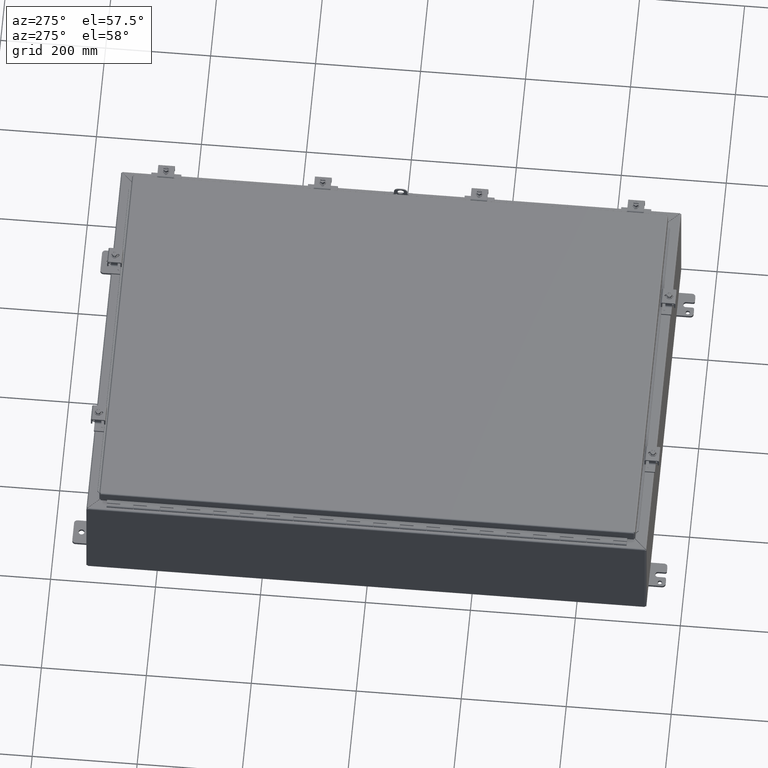
[diagram: clean part render]
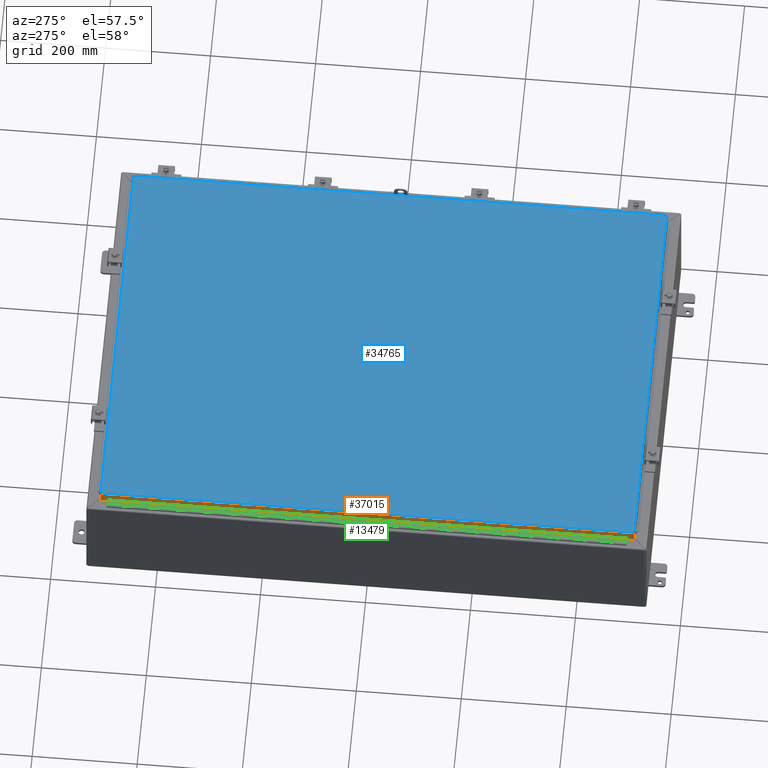
[diagram: same view with three faces highlighted in distinct colors, each labeled with its STEP entity id]
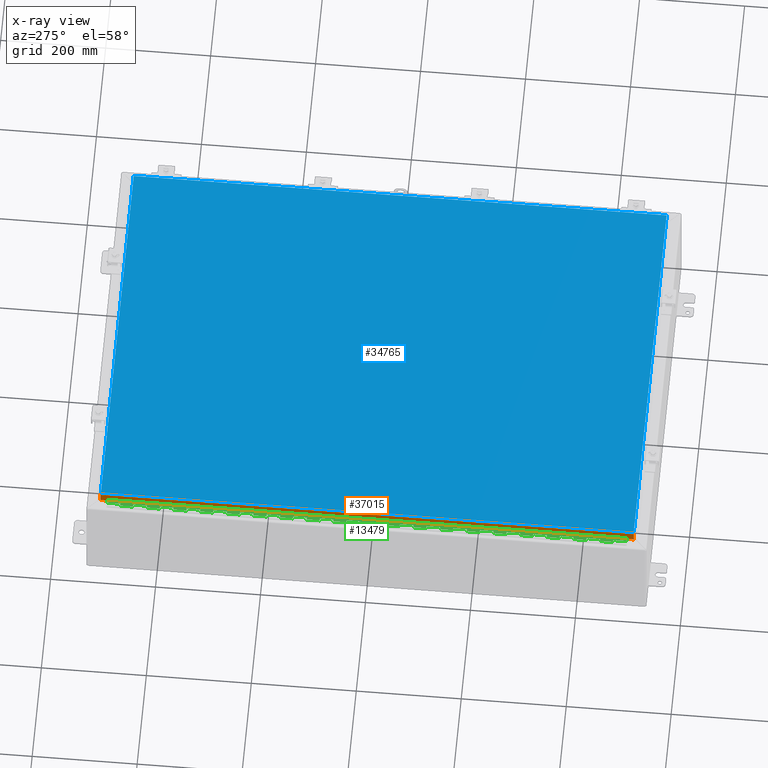
[diagram: x-ray of the same camera — body ghosted, the three highlighted faces saturated]
A machine part, auxiliary view with three faces highlighted in distinct colors.
The next image is the same camera in x-ray (body ghosted, the three faces saturated) — at least one of them is partly hidden behind the body in this view.
Their STEP definitions:

[orange] entity #37015 — the highlighted planar face has unit normal (1, 0, 0).
#290 = LINE ( 'NONE', #50972, #47749 ) ;
#747 = FACE_OUTER_BOUND ( 'NONE', #12591, .T. ) ;
#878 = VECTOR ( 'NONE', #38197, 39.37007874015748100 ) ;
#1083 = ORIENTED_EDGE ( 'NONE', *, *, #30919, .T. ) ;
#1159 = CARTESIAN_POINT ( 'NONE',  ( -14.18750000000000200, 20.00870145654396400, 0.1052499999999960100 ) ) ;
#1338 = EDGE_CURVE ( 'NONE', #23830, #26126, #44429, .T. ) ;
#1862 = CARTESIAN_POINT ( 'NONE',  ( -14.18750000000000900, 19.51562500000002800, 0.8749999999999991100 ) ) ;
#1886 = VECTOR ( 'NONE', #42163, 39.37007874015748100 ) ;
#3454 = CARTESIAN_POINT ( 'NONE',  ( -14.18750000000000900, 19.51562500000002800, 0.7500000000000001100 ) ) ;
#4365 = EDGE_CURVE ( 'NONE', #22079, #57014, #20281, .T. ) ;
#4659 = VERTEX_POINT ( 'NONE', #1862 ) ;
#4934 = VERTEX_POINT ( 'NONE', #11738 ) ;
#6249 = ORIENTED_EDGE ( 'NONE', *, *, #27236, .T. ) ;
#9812 = EDGE_CURVE ( 'NONE', #4659, #45770, #26931, .T. ) ;
#10579 = ORIENTED_EDGE ( 'NONE', *, *, #4365, .T. ) ;
#11076 = CARTESIAN_POINT ( 'NONE',  ( -14.18750000000000900, 20.00870145654401000, 0.8750000000000061100 ) ) ;
#11482 = DIRECTION ( 'NONE',  ( 0.0000000000000000000, 0.0000000000000000000, -1.000000000000000000 ) ) ;
#11530 = EDGE_CURVE ( 'NONE', #26126, #29726, #37049, .T. ) ;
#11738 = CARTESIAN_POINT ( 'NONE',  ( -14.18750000000000200, 20.00870145654398500, 0.1052499999999925400 ) ) ;
#12353 = CARTESIAN_POINT ( 'NONE',  ( -14.18750000000000000, -1.832507000000000400E-015, 0.4400087431936120500 ) ) ;
#12475 = VECTOR ( 'NONE', #11482, 39.37007874015748100 ) ;
#12591 = EDGE_LOOP ( 'NONE', ( #1083, #44818, #6249, #45771, #10579, #27828, #47304, #44554 ) ) ;
#13580 = CARTESIAN_POINT ( 'NONE',  ( -14.18750000000000000, -19.51562499999998900, 0.8750000000000250900 ) ) ;
#13924 = LINE ( 'NONE', #11076, #12475 ) ;
#14061 = DIRECTION ( 'NONE',  ( 0.0000000000000000000, 0.0000000000000000000, -1.000000000000000000 ) ) ;
#15193 = DIRECTION ( 'NONE',  ( 0.0000000000000000000, -1.000000000000000000, 0.0000000000000000000 ) ) ;
#15304 = CARTESIAN_POINT ( 'NONE',  ( -14.18750000000000900, 19.51562500000002800, 0.7500000000000001100 ) ) ;
#16918 = LINE ( 'NONE', #15304, #53749 ) ;
#17095 = DIRECTION ( 'NONE',  ( 0.0000000000000000000, 0.0000000000000000000, -1.000000000000000000 ) ) ;
#18610 = CARTESIAN_POINT ( 'NONE',  ( -14.18750000000000900, 20.00870145654401000, 0.8750000000000061100 ) ) ;
#20281 = LINE ( 'NONE', #36996, #31474 ) ;
#22079 = VERTEX_POINT ( 'NONE', #58989 ) ;
#23830 = VERTEX_POINT ( 'NONE', #53597 ) ;
#26126 = VERTEX_POINT ( 'NONE', #26733 ) ;
#26733 = CARTESIAN_POINT ( 'NONE',  ( -14.18749999999999600, -19.51562499999998900, 0.7500000000000220900 ) ) ;
#26931 = LINE ( 'NONE', #41981, #1886 ) ;
#27236 = EDGE_CURVE ( 'NONE', #45770, #4934, #13924, .T. ) ;
#27828 = ORIENTED_EDGE ( 'NONE', *, *, #57665, .T. ) ;
#29726 = VERTEX_POINT ( 'NONE', #3454 ) ;
#30919 = EDGE_CURVE ( 'NONE', #29726, #4659, #16918, .T. ) ;
#31474 = VECTOR ( 'NONE', #37999, 39.37007874015748100 ) ;
#33185 = LINE ( 'NONE', #1159, #44470 ) ;
#36996 = CARTESIAN_POINT ( 'NONE',  ( -14.18749999999999600, -20.00870145654396000, 0.1052500000000000100 ) ) ;
#37015 = ADVANCED_FACE ( 'NONE', ( #747 ), #50458, .F. ) ;
#37049 = LINE ( 'NONE', #37978, #878 ) ;
#37978 = CARTESIAN_POINT ( 'NONE',  ( -14.18749999999999600, -19.51562499999999600, 0.7500000000000220900 ) ) ;
#37999 = DIRECTION ( 'NONE',  ( 0.0000000000000000000, 0.0000000000000000000, 1.000000000000000000 ) ) ;
#38197 = DIRECTION ( 'NONE',  ( 0.0000000000000000000, 1.000000000000000000, 0.0000000000000000000 ) ) ;
#39171 = VECTOR ( 'NONE', #14061, 39.37007874015748100 ) ;
#41981 = CARTESIAN_POINT ( 'NONE',  ( -14.18749999999999600, 19.51562500000001800, 0.8749999999999961100 ) ) ;
#42163 = DIRECTION ( 'NONE',  ( 0.0000000000000000000, 1.000000000000000000, 0.0000000000000000000 ) ) ;
#44429 = LINE ( 'NONE', #13580, #39171 ) ;
#44470 = VECTOR ( 'NONE', #15193, 39.37007874015748100 ) ;
#44554 = ORIENTED_EDGE ( 'NONE', *, *, #11530, .T. ) ;
#44661 = CARTESIAN_POINT ( 'NONE',  ( -14.18749999999999600, -20.00870145654396400, 0.8749999999999961100 ) ) ;
#44818 = ORIENTED_EDGE ( 'NONE', *, *, #9812, .T. ) ;
#45757 = DIRECTION ( 'NONE',  ( 1.000000000000000000, 0.0000000000000000000, 0.0000000000000000000 ) ) ;
#45770 = VERTEX_POINT ( 'NONE', #18610 ) ;
#45771 = ORIENTED_EDGE ( 'NONE', *, *, #58557, .T. ) ;
#47304 = ORIENTED_EDGE ( 'NONE', *, *, #1338, .T. ) ;
#47749 = VECTOR ( 'NONE', #55737, 39.37007874015748100 ) ;
#48833 = DIRECTION ( 'NONE',  ( 0.0000000000000000000, 0.0000000000000000000, 1.000000000000000000 ) ) ;
#50458 = PLANE ( 'NONE',  #52621 ) ;
#50972 = CARTESIAN_POINT ( 'NONE',  ( -14.18749999999999600, -20.00870145654396400, 0.8749999999999961100 ) ) ;
#52621 = AXIS2_PLACEMENT_3D ( 'NONE', #12353, #45757, #17095 ) ;
#53597 = CARTESIAN_POINT ( 'NONE',  ( -14.18750000000000000, -19.51562499999998900, 0.8750000000000250900 ) ) ;
#53749 = VECTOR ( 'NONE', #48833, 39.37007874015748100 ) ;
#55737 = DIRECTION ( 'NONE',  ( 0.0000000000000000000, 1.000000000000000000, 0.0000000000000000000 ) ) ;
#57014 = VERTEX_POINT ( 'NONE', #44661 ) ;
#57665 = EDGE_CURVE ( 'NONE', #57014, #23830, #290, .T. ) ;
#58557 = EDGE_CURVE ( 'NONE', #4934, #22079, #33185, .T. ) ;
#58989 = CARTESIAN_POINT ( 'NONE',  ( -14.18749999999999600, -20.00870145654396400, 0.1052500000000079300 ) ) ;

[blue] entity #34765 — the highlighted planar face has unit normal (0, -0, -1).
#775 = LINE ( 'NONE', #16326, #11609 ) ;
#830 = EDGE_CURVE ( 'NONE', #36255, #18847, #37464, .T. ) ;
#5388 = EDGE_CURVE ( 'NONE', #18847, #23016, #27506, .T. ) ;
#7662 = CARTESIAN_POINT ( 'NONE',  ( 14.08225000000000000, 19.98850000000000500, 4.951474488516477200E-016 ) ) ;
#11238 = PLANE ( 'NONE',  #19457 ) ;
#11609 = VECTOR ( 'NONE', #40089, 39.37007874015748100 ) ;
#12058 = CARTESIAN_POINT ( 'NONE',  ( -14.08225000000000700, 19.98850000000000500, 0.0000000000000000000 ) ) ;
#12391 = CARTESIAN_POINT ( 'NONE',  ( -14.08225000000000900, 19.98850000000000500, 7.464772498020083900E-016 ) ) ;
#12876 = ORIENTED_EDGE ( 'NONE', *, *, #5388, .T. ) ;
#14190 = ORIENTED_EDGE ( 'NONE', *, *, #43673, .T. ) ;
#16326 = CARTESIAN_POINT ( 'NONE',  ( -14.08225000000000400, -19.98850000000000500, 0.0000000000000000000 ) ) ;
#18847 = VERTEX_POINT ( 'NONE', #39030 ) ;
#19457 = AXIS2_PLACEMENT_3D ( 'NONE', #20935, #54560, #25730 ) ;
#20935 = CARTESIAN_POINT ( 'NONE',  ( -6.993531000000001500E-016, 2.797412000000000300E-015, 0.0000000000000000000 ) ) ;
#22792 = CARTESIAN_POINT ( 'NONE',  ( -14.08225000000000400, -19.98849999999998800, 2.298167248218074700E-016 ) ) ;
#23016 = VERTEX_POINT ( 'NONE', #22792 ) ;
#25730 = DIRECTION ( 'NONE',  ( 1.000000000000000000, 0.0000000000000000000, 0.0000000000000000000 ) ) ;
#26375 = DIRECTION ( 'NONE',  ( 1.000000000000000000, 0.0000000000000000000, 0.0000000000000000000 ) ) ;
#26891 = ORIENTED_EDGE ( 'NONE', *, *, #30529, .T. ) ;
#27506 = LINE ( 'NONE', #41269, #51655 ) ;
#30529 = EDGE_CURVE ( 'NONE', #39673, #36255, #45347, .T. ) ;
#32573 = VECTOR ( 'NONE', #26375, 39.37007874015748100 ) ;
#34558 = VECTOR ( 'NONE', #47330, 39.37007874015748100 ) ;
#34765 = ADVANCED_FACE ( 'NONE', ( #43323 ), #11238, .F. ) ;
#36255 = VERTEX_POINT ( 'NONE', #7662 ) ;
#37464 = LINE ( 'NONE', #46696, #34558 ) ;
#39030 = CARTESIAN_POINT ( 'NONE',  ( 14.08225000000000500, -19.98850000000000200, -1.489369538658252000E-015 ) ) ;
#39673 = VERTEX_POINT ( 'NONE', #12391 ) ;
#40089 = DIRECTION ( 'NONE',  ( 0.0000000000000000000, 1.000000000000000000, 0.0000000000000000000 ) ) ;
#40539 = DIRECTION ( 'NONE',  ( -1.000000000000000000, 0.0000000000000000000, 0.0000000000000000000 ) ) ;
#41269 = CARTESIAN_POINT ( 'NONE',  ( 14.08225000000000400, -19.98850000000000500, 0.0000000000000000000 ) ) ;
#43323 = FACE_OUTER_BOUND ( 'NONE', #55667, .T. ) ;
#43673 = EDGE_CURVE ( 'NONE', #23016, #39673, #775, .T. ) ;
#45347 = LINE ( 'NONE', #12058, #32573 ) ;
#46696 = CARTESIAN_POINT ( 'NONE',  ( 14.08225000000000000, 19.98850000000000500, 0.0000000000000000000 ) ) ;
#47330 = DIRECTION ( 'NONE',  ( 0.0000000000000000000, -1.000000000000000000, 0.0000000000000000000 ) ) ;
#51655 = VECTOR ( 'NONE', #40539, 39.37007874015748100 ) ;
#54560 = DIRECTION ( 'NONE',  ( 0.0000000000000000000, 0.0000000000000000000, 1.000000000000000000 ) ) ;
#55667 = EDGE_LOOP ( 'NONE', ( #14190, #26891, #59690, #12876 ) ) ;
#59690 = ORIENTED_EDGE ( 'NONE', *, *, #830, .T. ) ;

[green] entity #13479 — the highlighted planar face has unit normal (0.0872, 0, 0.9962).
#15 = CARTESIAN_POINT ( 'NONE',  ( -0.5110050767308841300, -0.1250000000000000300, 39.00000000000000700 ) ) ;
#44 = LINE ( 'NONE', #36875, #47488 ) ;
#83 = CARTESIAN_POINT ( 'NONE',  ( -0.1800000000000000200, -0.1250000000000000300, 5.000000000000008000 ) ) ;
#111 = LINE ( 'NONE', #50391, #12422 ) ;
#213 = EDGE_CURVE ( 'NONE', #4425, #53873, #43720, .T. ) ;
#256 = CARTESIAN_POINT ( 'NONE',  ( -0.5110050767308841300, -0.1250000000000000300, 0.0000000000000000000 ) ) ;
#688 = CARTESIAN_POINT ( 'NONE',  ( -0.1800000000000000200, -0.1250000000000000300, 11.00000000000000500 ) ) ;
#696 = VERTEX_POINT ( 'NONE', #52897 ) ;
#1372 = LINE ( 'NONE', #44367, #12246 ) ;
#1468 = LINE ( 'NONE', #2225, #50579 ) ;
#1569 = VECTOR ( 'NONE', #25651, 39.37007874015748100 ) ;
#1667 = VERTEX_POINT ( 'NONE', #3184 ) ;
#1811 = ORIENTED_EDGE ( 'NONE', *, *, #9004, .T. ) ;
#1854 = ORIENTED_EDGE ( 'NONE', *, *, #3655, .T. ) ;
#2060 = EDGE_CURVE ( 'NONE', #31655, #45318, #14291, .T. ) ;
#2217 = LINE ( 'NONE', #23265, #13199 ) ;
#2225 = CARTESIAN_POINT ( 'NONE',  ( 1.530808000000000300E-017, -0.1250000000000000300, 13.00000000000000700 ) ) ;
#2312 = EDGE_CURVE ( 'NONE', #14361, #38236, #43220, .T. ) ;
#2417 = ORIENTED_EDGE ( 'NONE', *, *, #8013, .T. ) ;
#2471 = LINE ( 'NONE', #27450, #37331 ) ;
#2536 = LINE ( 'NONE', #33673, #27659 ) ;
#2680 = VERTEX_POINT ( 'NONE', #50928 ) ;
#2692 = DIRECTION ( 'NONE',  ( 0.0000000000000000000, 0.0000000000000000000, 1.000000000000000000 ) ) ;
#2959 = VERTEX_POINT ( 'NONE', #59061 ) ;
#3102 = DIRECTION ( 'NONE',  ( 1.000000000000000000, 0.0000000000000000000, 0.0000000000000000000 ) ) ;
#3115 = CARTESIAN_POINT ( 'NONE',  ( -0.5110050767308841300, -0.1250000000000000300, 0.0000000000000000000 ) ) ;
#3154 = VERTEX_POINT ( 'NONE', #50487 ) ;
#3184 = CARTESIAN_POINT ( 'NONE',  ( -0.1800000000000000200, -0.1250000000000000300, 7.980000000000005800 ) ) ;
#3185 = DIRECTION ( 'NONE',  ( 0.0000000000000000000, 0.0000000000000000000, 1.000000000000000000 ) ) ;
#3252 = LINE ( 'NONE', #13898, #51060 ) ;
#3285 = VECTOR ( 'NONE', #51019, 39.37007874015748100 ) ;
#3406 = CARTESIAN_POINT ( 'NONE',  ( 1.530808000000000300E-017, -0.1250000000000000300, 37.00000000000001400 ) ) ;
#3476 = DIRECTION ( 'NONE',  ( 0.0000000000000000000, 0.0000000000000000000, 1.000000000000000000 ) ) ;
#3655 = EDGE_CURVE ( 'NONE', #29694, #25941, #17557, .T. ) ;
#3760 = CARTESIAN_POINT ( 'NONE',  ( -0.1800000000000000200, -0.1250000000000000300, 3.980000000000006600 ) ) ;
#3816 = LINE ( 'NONE', #50865, #26021 ) ;
#3859 = DIRECTION ( 'NONE',  ( -1.000000000000000000, 0.0000000000000000000, 0.0000000000000000000 ) ) ;
#3887 = DIRECTION ( 'NONE',  ( 1.000000000000000000, 0.0000000000000000000, 0.0000000000000000000 ) ) ;
#3895 = CARTESIAN_POINT ( 'NONE',  ( -3.081488000000000400E-033, -0.1250000000000000300, 17.98000000000000800 ) ) ;
#4225 = CARTESIAN_POINT ( 'NONE',  ( -0.1800000000000000200, -0.1250000000000000300, 39.00000000000000700 ) ) ;
#4358 = DIRECTION ( 'NONE',  ( -1.000000000000000000, 0.0000000000000000000, 0.0000000000000000000 ) ) ;
#4395 = CARTESIAN_POINT ( 'NONE',  ( -0.1800000000000000200, -0.1250000000000000300, 7.000000000000007100 ) ) ;
#4412 = ORIENTED_EDGE ( 'NONE', *, *, #213, .T. ) ;
#4425 = VERTEX_POINT ( 'NONE', #41074 ) ;
#4424 = LINE ( 'NONE', #34213, #40862 ) ;
#4435 = ORIENTED_EDGE ( 'NONE', *, *, #27960, .T. ) ;
#4539 = ORIENTED_EDGE ( 'NONE', *, *, #8009, .T. ) ;
#4552 = DIRECTION ( 'NONE',  ( 0.0000000000000000000, 0.0000000000000000000, 1.000000000000000000 ) ) ;
#4636 = VERTEX_POINT ( 'NONE', #55351 ) ;
#4677 = CARTESIAN_POINT ( 'NONE',  ( -0.1800000000000000200, -0.1250000000000000300, 31.00000000000001100 ) ) ;
#4704 = VERTEX_POINT ( 'NONE', #24695 ) ;
#4720 = VERTEX_POINT ( 'NONE', #24711 ) ;
#4732 = DIRECTION ( 'NONE',  ( 1.000000000000000000, 0.0000000000000000000, 0.0000000000000000000 ) ) ;
#4753 = LINE ( 'NONE', #31583, #41199 ) ;
#4924 = LINE ( 'NONE', #11676, #28643 ) ;
#4927 = EDGE_CURVE ( 'NONE', #44497, #17823, #50166, .T. ) ;
#4956 = CARTESIAN_POINT ( 'NONE',  ( -0.1800000000000000200, -0.1250000000000000300, 25.98000000000000000 ) ) ;
#5063 = VERTEX_POINT ( 'NONE', #6866 ) ;
#5126 = ORIENTED_EDGE ( 'NONE', *, *, #4927, .T. ) ;
#5214 = DIRECTION ( 'NONE',  ( -1.000000000000000000, 0.0000000000000000000, 0.0000000000000000000 ) ) ;
#5266 = ORIENTED_EDGE ( 'NONE', *, *, #30268, .T. ) ;
#5276 = CARTESIAN_POINT ( 'NONE',  ( 0.0000000000000000000, -0.1250000000000000300, 23.00000000000000700 ) ) ;
#5398 = CARTESIAN_POINT ( 'NONE',  ( 0.0000000000000000000, -0.1250000000000000300, 27.00000000000000400 ) ) ;
#5461 = DIRECTION ( 'NONE',  ( 0.0000000000000000000, 0.0000000000000000000, 1.000000000000000000 ) ) ;
#5582 = CARTESIAN_POINT ( 'NONE',  ( 0.0000000000000000000, -0.1250000000000000300, 15.00000000000000500 ) ) ;
#5891 = VERTEX_POINT ( 'NONE', #18522 ) ;
#5928 = VECTOR ( 'NONE', #19488, 39.37007874015748100 ) ;
#5942 = EDGE_LOOP ( 'NONE', ( #4435, #26622, #39789, #44399, #22819, #13351, #14161, #9811, #20693, #45599, #7331, #7623, #42434, #11192, #49263, #57687, #20227, #13775, #4412, #2417, #23650, #49256, #28081, #39662, #44462, #40065, #34301, #5126, #12192, #21682, #29393, #50210, #7923, #48322, #10759, #6614, #6711, #36951, #56906, #44539, #17728, #15798, #10362, #15476, #38162, #20904, #1811, #50063, #43850, #23512, #29522, #20913, #13742, #11378, #7635, #1854, #4539, #10249, #43610, #25002, #5266, #32783, #55288, #42347, #7034, #31823, #31723, #14238, #61419, #30113, #26317, #43842, #20983, #18032, #19617, #41296, #47630, #44132, #58006, #30128 ) ) ;
#5950 = VERTEX_POINT ( 'NONE', #14769 ) ;
#6056 = VECTOR ( 'NONE', #29231, 39.37007874015748100 ) ;
#6179 = CARTESIAN_POINT ( 'NONE',  ( -0.1800000000000000200, -0.1250000000000000300, 33.00000000000001400 ) ) ;
#6324 = VERTEX_POINT ( 'NONE', #45481 ) ;
#6347 = DIRECTION ( 'NONE',  ( 1.000000000000000000, 0.0000000000000000000, 0.0000000000000000000 ) ) ;
#6414 = VERTEX_POINT ( 'NONE', #59670 ) ;
#6495 = LINE ( 'NONE', #12593, #42960 ) ;
#6523 = CARTESIAN_POINT ( 'NONE',  ( -0.1800000000000000200, -0.1250000000000000300, 19.00000000000001100 ) ) ;
#6614 = ORIENTED_EDGE ( 'NONE', *, *, #2060, .T. ) ;
#6666 = EDGE_CURVE ( 'NONE', #5891, #60563, #3252, .T. ) ;
#6711 = ORIENTED_EDGE ( 'NONE', *, *, #54723, .T. ) ;
#6866 = CARTESIAN_POINT ( 'NONE',  ( 0.0000000000000000000, -0.1250000000000000300, 13.00000000000000700 ) ) ;
#6885 = VERTEX_POINT ( 'NONE', #25629 ) ;
#7034 = ORIENTED_EDGE ( 'NONE', *, *, #2312, .T. ) ;
#7139 = VECTOR ( 'NONE', #41867, 39.37007874015748100 ) ;
#7164 = LINE ( 'NONE', #46251, #56485 ) ;
#7193 = EDGE_CURVE ( 'NONE', #34075, #5063, #36526, .T. ) ;
#7331 = ORIENTED_EDGE ( 'NONE', *, *, #55343, .T. ) ;
#7388 = EDGE_CURVE ( 'NONE', #6324, #35986, #39480, .T. ) ;
#7623 = ORIENTED_EDGE ( 'NONE', *, *, #37878, .T. ) ;
#7635 = ORIENTED_EDGE ( 'NONE', *, *, #36988, .T. ) ;
#7787 = CARTESIAN_POINT ( 'NONE',  ( 0.0000000000000000000, -0.1250000000000000300, 27.98000000000000800 ) ) ;
#7853 = DIRECTION ( 'NONE',  ( 1.000000000000000000, 0.0000000000000000000, 0.0000000000000000000 ) ) ;
#7923 = ORIENTED_EDGE ( 'NONE', *, *, #21836, .T. ) ;
#7943 = CARTESIAN_POINT ( 'NONE',  ( -0.1800000000000000200, -0.1250000000000000300, 37.00000000000001400 ) ) ;
#7971 = VECTOR ( 'NONE', #3887, 39.37007874015748100 ) ;
#8009 = EDGE_CURVE ( 'NONE', #25941, #24333, #49226, .T. ) ;
#8013 = EDGE_CURVE ( 'NONE', #53873, #35429, #36340, .T. ) ;
#8091 = CARTESIAN_POINT ( 'NONE',  ( 0.0000000000000000000, -0.1250000000000000300, 31.00000000000001100 ) ) ;
#8191 = CARTESIAN_POINT ( 'NONE',  ( -0.1800000000000000200, -0.1250000000000000300, 7.980000000000005800 ) ) ;
#8304 = DIRECTION ( 'NONE',  ( 1.000000000000000000, 0.0000000000000000000, 0.0000000000000000000 ) ) ;
#8446 = EDGE_CURVE ( 'NONE', #16052, #25455, #6495, .T. ) ;
#8966 = CARTESIAN_POINT ( 'NONE',  ( 0.0000000000000000000, -0.1250000000000000300, 19.98000000000000800 ) ) ;
#9004 = EDGE_CURVE ( 'NONE', #18019, #22013, #56471, .T. ) ;
#9015 = LINE ( 'NONE', #30783, #6056 ) ;
#9291 = CARTESIAN_POINT ( 'NONE',  ( -0.1800000000000000200, -0.1250000000000000300, 25.00000000000001100 ) ) ;
#9611 = DIRECTION ( 'NONE',  ( 0.0000000000000000000, 0.0000000000000000000, 1.000000000000000000 ) ) ;
#9690 = VERTEX_POINT ( 'NONE', #46186 ) ;
#9736 = CARTESIAN_POINT ( 'NONE',  ( -0.1800000000000000200, -0.1250000000000000300, 37.98000000000001100 ) ) ;
#9811 = ORIENTED_EDGE ( 'NONE', *, *, #10911, .T. ) ;
#9818 = EDGE_CURVE ( 'NONE', #14745, #26638, #14297, .T. ) ;
#9885 = VERTEX_POINT ( 'NONE', #39232 ) ;
#9914 = CARTESIAN_POINT ( 'NONE',  ( 1.530808000000000300E-017, -0.1250000000000000300, 15.00000000000000500 ) ) ;
#10118 = VECTOR ( 'NONE', #10952, 39.37007874015748100 ) ;
#10187 = DIRECTION ( 'NONE',  ( 0.0000000000000000000, 0.0000000000000000000, 1.000000000000000000 ) ) ;
#10249 = ORIENTED_EDGE ( 'NONE', *, *, #46010, .T. ) ;
#10362 = ORIENTED_EDGE ( 'NONE', *, *, #31552, .T. ) ;
#10502 = CARTESIAN_POINT ( 'NONE',  ( -0.1800000000000000200, -0.1250000000000000300, 23.98000000000000800 ) ) ;
#10541 = EDGE_CURVE ( 'NONE', #18648, #18479, #31972, .T. ) ;
#10587 = LINE ( 'NONE', #41078, #59839 ) ;
#10759 = ORIENTED_EDGE ( 'NONE', *, *, #39607, .T. ) ;
#10825 = EDGE_CURVE ( 'NONE', #27427, #54281, #44698, .T. ) ;
#10911 = EDGE_CURVE ( 'NONE', #31563, #54319, #37869, .T. ) ;
#10952 = DIRECTION ( 'NONE',  ( 1.000000000000000000, 0.0000000000000000000, 0.0000000000000000000 ) ) ;
#11192 = ORIENTED_EDGE ( 'NONE', *, *, #54994, .T. ) ;
#11203 = CARTESIAN_POINT ( 'NONE',  ( -0.1800000000000000200, -0.1250000000000000300, 23.98000000000001100 ) ) ;
#11204 = CARTESIAN_POINT ( 'NONE',  ( -0.1800000000000000200, -0.1250000000000000300, 13.98000000000000600 ) ) ;
#11378 = ORIENTED_EDGE ( 'NONE', *, *, #7388, .T. ) ;
#11676 = CARTESIAN_POINT ( 'NONE',  ( 1.530808000000000300E-017, -0.1250000000000000300, 5.000000000000007100 ) ) ;
#11846 = DIRECTION ( 'NONE',  ( 0.0000000000000000000, 0.0000000000000000000, 1.000000000000000000 ) ) ;
#12069 = VERTEX_POINT ( 'NONE', #48585 ) ;
#12095 = CARTESIAN_POINT ( 'NONE',  ( 1.530808000000000300E-017, -0.1250000000000000300, 9.000000000000007100 ) ) ;
#12166 = DIRECTION ( 'NONE',  ( 0.0000000000000000000, 0.0000000000000000000, 1.000000000000000000 ) ) ;
#12192 = ORIENTED_EDGE ( 'NONE', *, *, #56611, .T. ) ;
#12246 = VECTOR ( 'NONE', #49267, 39.37007874015748100 ) ;
#12274 = DIRECTION ( 'NONE',  ( 0.0000000000000000000, 0.0000000000000000000, 1.000000000000000000 ) ) ;
#12292 = CARTESIAN_POINT ( 'NONE',  ( 1.530808000000000300E-017, -0.1250000000000000300, 35.00000000000000700 ) ) ;
#12342 = EDGE_CURVE ( 'NONE', #58336, #14920, #10587, .T. ) ;
#12364 = EDGE_CURVE ( 'NONE', #45741, #14719, #34382, .T. ) ;
#12422 = VECTOR ( 'NONE', #51512, 39.37007874015748100 ) ;
#12473 = VECTOR ( 'NONE', #59153, 39.37007874015748100 ) ;
#12533 = CARTESIAN_POINT ( 'NONE',  ( -0.1800000000000000200, -0.1250000000000000300, 11.98000000000000600 ) ) ;
#12560 = EDGE_CURVE ( 'NONE', #22013, #21446, #9015, .T. ) ;
#12593 = CARTESIAN_POINT ( 'NONE',  ( -0.1800000000000000200, -0.1250000000000000300, 5.980000000000006600 ) ) ;
#12617 = VECTOR ( 'NONE', #42805, 39.37007874015748100 ) ;
#12774 = VECTOR ( 'NONE', #4358, 39.37007874015748100 ) ;
#12850 = DIRECTION ( 'NONE',  ( -1.000000000000000000, 0.0000000000000000000, 0.0000000000000000000 ) ) ;
#13093 = CARTESIAN_POINT ( 'NONE',  ( -0.1800000000000000200, -0.1250000000000000300, 23.00000000000000700 ) ) ;
#13126 = DIRECTION ( 'NONE',  ( 0.0000000000000000000, 0.0000000000000000000, 1.000000000000000000 ) ) ;
#13199 = VECTOR ( 'NONE', #23349, 39.37007874015748100 ) ;
#13218 = CARTESIAN_POINT ( 'NONE',  ( -0.1800000000000000200, -0.1250000000000000300, 33.98000000000001100 ) ) ;
#13279 = LINE ( 'NONE', #59448, #24407 ) ;
#13351 = ORIENTED_EDGE ( 'NONE', *, *, #38422, .T. ) ;
#13446 = VECTOR ( 'NONE', #12850, 39.37007874015748100 ) ;
#13479 = ADVANCED_FACE ( 'NONE', ( #14707 ), #17100, .T. ) ;
#13664 = VECTOR ( 'NONE', #60978, 39.37007874015748100 ) ;
#13742 = ORIENTED_EDGE ( 'NONE', *, *, #27142, .T. ) ;
#13775 = ORIENTED_EDGE ( 'NONE', *, *, #26257, .T. ) ;
#13790 = EDGE_CURVE ( 'NONE', #59535, #31563, #111, .T. ) ;
#13898 = CARTESIAN_POINT ( 'NONE',  ( -0.1800000000000000200, -0.1250000000000000300, 1.980000000000006200 ) ) ;
#14125 = CARTESIAN_POINT ( 'NONE',  ( 0.0000000000000000000, -0.1250000000000000300, 9.980000000000004000 ) ) ;
#14152 = DIRECTION ( 'NONE',  ( 0.0000000000000000000, 0.0000000000000000000, 1.000000000000000000 ) ) ;
#14161 = ORIENTED_EDGE ( 'NONE', *, *, #13790, .T. ) ;
#14238 = ORIENTED_EDGE ( 'NONE', *, *, #16515, .T. ) ;
#14291 = LINE ( 'NONE', #3895, #12774 ) ;
#14297 = LINE ( 'NONE', #41751, #38158 ) ;
#14361 = VERTEX_POINT ( 'NONE', #53167 ) ;
#14362 = LINE ( 'NONE', #256, #49592 ) ;
#14455 = CARTESIAN_POINT ( 'NONE',  ( 0.0000000000000000000, -0.1250000000000000300, 3.000000000000007500 ) ) ;
#14495 = DIRECTION ( 'NONE',  ( 0.0000000000000000000, 0.0000000000000000000, 1.000000000000000000 ) ) ;
#14517 = EDGE_CURVE ( 'NONE', #35429, #39276, #7164, .T. ) ;
#14707 = FACE_OUTER_BOUND ( 'NONE', #5942, .T. ) ;
#14719 = VERTEX_POINT ( 'NONE', #32734 ) ;
#14745 = VERTEX_POINT ( 'NONE', #32871 ) ;
#14769 = CARTESIAN_POINT ( 'NONE',  ( -0.1800000000000000200, -0.1250000000000000300, 29.98000000000000800 ) ) ;
#14919 = CARTESIAN_POINT ( 'NONE',  ( -6.162976000000000900E-033, -0.1250000000000000300, 27.98000000000000800 ) ) ;
#14920 = VERTEX_POINT ( 'NONE', #19834 ) ;
#14951 = VECTOR ( 'NONE', #60500, 39.37007874015748100 ) ;
#15031 = CARTESIAN_POINT ( 'NONE',  ( 0.0000000000000000000, -0.1250000000000000300, 3.980000000000006600 ) ) ;
#15086 = LINE ( 'NONE', #51654, #27726 ) ;
#15262 = DIRECTION ( 'NONE',  ( 1.000000000000000000, 0.0000000000000000000, 0.0000000000000000000 ) ) ;
#15298 = LINE ( 'NONE', #55652, #50581 ) ;
#15448 = DIRECTION ( 'NONE',  ( -1.000000000000000000, 0.0000000000000000000, 0.0000000000000000000 ) ) ;
#15476 = ORIENTED_EDGE ( 'NONE', *, *, #12342, .T. ) ;
#15537 = CARTESIAN_POINT ( 'NONE',  ( -0.5110050767308841300, -0.1250000000000000300, 0.0000000000000000000 ) ) ;
#15696 = CARTESIAN_POINT ( 'NONE',  ( -0.1800000000000000200, -0.1250000000000000300, 39.00000000000000700 ) ) ;
#15798 = ORIENTED_EDGE ( 'NONE', *, *, #29704, .T. ) ;
#15853 = CARTESIAN_POINT ( 'NONE',  ( 0.0000000000000000000, -0.1250000000000000300, 31.98000000000000800 ) ) ;
#16051 = EDGE_CURVE ( 'NONE', #61307, #2959, #51009, .T. ) ;
#16052 = VERTEX_POINT ( 'NONE', #55133 ) ;
#16076 = CARTESIAN_POINT ( 'NONE',  ( 0.0000000000000000000, -0.1250000000000000300, 13.98000000000000600 ) ) ;
#16409 = CARTESIAN_POINT ( 'NONE',  ( -0.1800000000000000200, -0.1250000000000000300, 15.98000000000000800 ) ) ;
#16458 = DIRECTION ( 'NONE',  ( 0.0000000000000000000, 0.0000000000000000000, 1.000000000000000000 ) ) ;
#16515 = EDGE_CURVE ( 'NONE', #32669, #6885, #51597, .T. ) ;
#16871 = DIRECTION ( 'NONE',  ( 0.0000000000000000000, 0.0000000000000000000, 1.000000000000000000 ) ) ;
#17009 = DIRECTION ( 'NONE',  ( 0.0000000000000000000, 0.0000000000000000000, 1.000000000000000000 ) ) ;
#17077 = LINE ( 'NONE', #30030, #40930 ) ;
#17086 = CARTESIAN_POINT ( 'NONE',  ( 1.530808000000000300E-017, -0.1250000000000000300, 23.00000000000000700 ) ) ;
#17100 = PLANE ( 'NONE',  #19295 ) ;
#17150 = LINE ( 'NONE', #20603, #28279 ) ;
#17557 = LINE ( 'NONE', #14919, #41410 ) ;
#17728 = ORIENTED_EDGE ( 'NONE', *, *, #49852, .T. ) ;
#17744 = DIRECTION ( 'NONE',  ( 0.0000000000000000000, 0.0000000000000000000, 1.000000000000000000 ) ) ;
#17775 = CARTESIAN_POINT ( 'NONE',  ( 1.530808000000000300E-017, -0.1250000000000000300, 25.00000000000001100 ) ) ;
#17823 = VERTEX_POINT ( 'NONE', #11204 ) ;
#17871 = VECTOR ( 'NONE', #48135, 39.37007874015748100 ) ;
#18019 = VERTEX_POINT ( 'NONE', #5276 ) ;
#18032 = ORIENTED_EDGE ( 'NONE', *, *, #18600, .T. ) ;
#18074 = DIRECTION ( 'NONE',  ( -1.000000000000000000, 0.0000000000000000000, 0.0000000000000000000 ) ) ;
#18479 = VERTEX_POINT ( 'NONE', #19952 ) ;
#18509 = LINE ( 'NONE', #19637, #5928 ) ;
#18522 = CARTESIAN_POINT ( 'NONE',  ( -0.1800000000000000200, -0.1250000000000000300, 1.980000000000007300 ) ) ;
#18600 = EDGE_CURVE ( 'NONE', #44710, #2680, #15298, .T. ) ;
#18648 = VERTEX_POINT ( 'NONE', #52226 ) ;
#18755 = DIRECTION ( 'NONE',  ( 1.000000000000000000, 0.0000000000000000000, 0.0000000000000000000 ) ) ;
#18917 = CARTESIAN_POINT ( 'NONE',  ( -0.1800000000000000200, -0.1250000000000000300, 3.980000000000008000 ) ) ;
#18981 = DIRECTION ( 'NONE',  ( 0.0000000000000000000, 0.0000000000000000000, 1.000000000000000000 ) ) ;
#19011 = VERTEX_POINT ( 'NONE', #30927 ) ;
#19256 = LINE ( 'NONE', #59558, #43166 ) ;
#19295 = AXIS2_PLACEMENT_3D ( 'NONE', #20232, #20366, #20450 ) ;
#19307 = VECTOR ( 'NONE', #12166, 39.37007874015748100 ) ;
#19488 = DIRECTION ( 'NONE',  ( 1.000000000000000000, 0.0000000000000000000, 0.0000000000000000000 ) ) ;
#19617 = ORIENTED_EDGE ( 'NONE', *, *, #26680, .T. ) ;
#19637 = CARTESIAN_POINT ( 'NONE',  ( -0.1800000000000000200, -0.1250000000000000300, 9.000000000000007100 ) ) ;
#19726 = CARTESIAN_POINT ( 'NONE',  ( -0.1800000000000000200, -0.1250000000000000300, 19.98000000000000800 ) ) ;
#19834 = CARTESIAN_POINT ( 'NONE',  ( -0.1800000000000000200, -0.1250000000000000300, 21.98000000000000400 ) ) ;
#19934 = CARTESIAN_POINT ( 'NONE',  ( 0.0000000000000000000, -0.1250000000000000300, 29.00000000000001100 ) ) ;
#19945 = VECTOR ( 'NONE', #7853, 39.37007874015748100 ) ;
#19952 = CARTESIAN_POINT ( 'NONE',  ( 0.0000000000000000000, -0.1250000000000000300, 35.98000000000000400 ) ) ;
#20184 = VECTOR ( 'NONE', #38539, 39.37007874015748100 ) ;
#20227 = ORIENTED_EDGE ( 'NONE', *, *, #52874, .T. ) ;
#20232 = CARTESIAN_POINT ( 'NONE',  ( 1.530808000000000300E-017, -0.1250000000000000300, 0.0000000000000000000 ) ) ;
#20256 = CARTESIAN_POINT ( 'NONE',  ( -0.1800000000000000200, -0.1250000000000000300, 35.00000000000000700 ) ) ;
#20366 = DIRECTION ( 'NONE',  ( 0.0000000000000000000, -1.000000000000000000, 0.0000000000000000000 ) ) ;
#20450 = DIRECTION ( 'NONE',  ( 0.0000000000000000000, 0.0000000000000000000, -1.000000000000000000 ) ) ;
#20496 = CARTESIAN_POINT ( 'NONE',  ( 1.530808000000000300E-017, -0.1250000000000000300, 7.000000000000007100 ) ) ;
#20562 = DIRECTION ( 'NONE',  ( 0.0000000000000000000, 0.0000000000000000000, 1.000000000000000000 ) ) ;
#20603 = CARTESIAN_POINT ( 'NONE',  ( -0.1800000000000000200, -0.1250000000000000300, 35.00000000000000700 ) ) ;
#20693 = ORIENTED_EDGE ( 'NONE', *, *, #24906, .T. ) ;
#20819 = CARTESIAN_POINT ( 'NONE',  ( -0.1800000000000000200, -0.1250000000000000300, 29.00000000000001100 ) ) ;
#20858 = CARTESIAN_POINT ( 'NONE',  ( -0.1800000000000000200, -0.1250000000000000300, 11.00000000000000500 ) ) ;
#20904 = ORIENTED_EDGE ( 'NONE', *, *, #51815, .T. ) ;
#20913 = ORIENTED_EDGE ( 'NONE', *, *, #27500, .T. ) ;
#20965 = EDGE_CURVE ( 'NONE', #58459, #5891, #35602, .T. ) ;
#20972 = VERTEX_POINT ( 'NONE', #30285 ) ;
#20983 = ORIENTED_EDGE ( 'NONE', *, *, #52110, .T. ) ;
#21118 = VERTEX_POINT ( 'NONE', #25901 ) ;
#21138 = EDGE_CURVE ( 'NONE', #38825, #48270, #38544, .T. ) ;
#21158 = EDGE_CURVE ( 'NONE', #14920, #35594, #2217, .T. ) ;
#21235 = EDGE_CURVE ( 'NONE', #20972, #32835, #35520, .T. ) ;
#21326 = EDGE_CURVE ( 'NONE', #6414, #41323, #45305, .T. ) ;
#21355 = LINE ( 'NONE', #4956, #58075 ) ;
#21446 = VERTEX_POINT ( 'NONE', #11203 ) ;
#21484 = EDGE_CURVE ( 'NONE', #14719, #33664, #60885, .T. ) ;
#21491 = CARTESIAN_POINT ( 'NONE',  ( -0.1800000000000000200, -0.1250000000000000300, 33.00000000000001400 ) ) ;
#21682 = ORIENTED_EDGE ( 'NONE', *, *, #9818, .T. ) ;
#21766 = CARTESIAN_POINT ( 'NONE',  ( -0.1800000000000000200, -0.1250000000000000300, 35.98000000000000400 ) ) ;
#21836 = EDGE_CURVE ( 'NONE', #33010, #12069, #57262, .T. ) ;
#22013 = VERTEX_POINT ( 'NONE', #61323 ) ;
#22292 = CARTESIAN_POINT ( 'NONE',  ( 0.0000000000000000000, -0.1250000000000000300, 7.980000000000005800 ) ) ;
#22579 = VECTOR ( 'NONE', #29344, 39.37007874015748100 ) ;
#22727 = VECTOR ( 'NONE', #48506, 39.37007874015748100 ) ;
#22819 = ORIENTED_EDGE ( 'NONE', *, *, #6666, .T. ) ;
#23009 = DIRECTION ( 'NONE',  ( 1.000000000000000000, 0.0000000000000000000, 0.0000000000000000000 ) ) ;
#23058 = VERTEX_POINT ( 'NONE', #21766 ) ;
#23066 = CARTESIAN_POINT ( 'NONE',  ( -0.1800000000000000200, -0.1250000000000000300, 1.000000000000008200 ) ) ;
#23265 = CARTESIAN_POINT ( 'NONE',  ( -0.1800000000000000200, -0.1250000000000000300, 21.98000000000000400 ) ) ;
#23344 = VERTEX_POINT ( 'NONE', #6523 ) ;
#23349 = DIRECTION ( 'NONE',  ( 0.0000000000000000000, 0.0000000000000000000, 1.000000000000000000 ) ) ;
#23422 = LINE ( 'NONE', #31317, #47478 ) ;
#23477 = VECTOR ( 'NONE', #32661, 39.37007874015748100 ) ;
#23512 = ORIENTED_EDGE ( 'NONE', *, *, #34951, .T. ) ;
#23630 = VECTOR ( 'NONE', #36590, 39.37007874015748100 ) ;
#23650 = ORIENTED_EDGE ( 'NONE', *, *, #14517, .T. ) ;
#23950 = VECTOR ( 'NONE', #17744, 39.37007874015748100 ) ;
#24333 = VERTEX_POINT ( 'NONE', #20819 ) ;
#24400 = VECTOR ( 'NONE', #5461, 39.37007874015748100 ) ;
#24407 = VECTOR ( 'NONE', #11846, 39.37007874015748100 ) ;
#24459 = VERTEX_POINT ( 'NONE', #15853 ) ;
#24463 = CARTESIAN_POINT ( 'NONE',  ( -0.1800000000000000200, -0.1250000000000000300, 1.000000000000008200 ) ) ;
#24695 = CARTESIAN_POINT ( 'NONE',  ( -0.1800000000000000200, -0.1250000000000000300, 25.98000000000000000 ) ) ;
#24711 = CARTESIAN_POINT ( 'NONE',  ( -0.1800000000000000200, -0.1250000000000000300, 21.00000000000000700 ) ) ;
#24783 = EDGE_CURVE ( 'NONE', #34679, #48039, #51949, .T. ) ;
#24906 = EDGE_CURVE ( 'NONE', #54319, #36241, #41243, .T. ) ;
#25002 = ORIENTED_EDGE ( 'NONE', *, *, #52952, .T. ) ;
#25140 = EDGE_CURVE ( 'NONE', #54281, #24459, #54129, .T. ) ;
#25148 = VECTOR ( 'NONE', #35928, 39.37007874015748100 ) ;
#25362 = VECTOR ( 'NONE', #55335, 39.37007874015748100 ) ;
#25455 = VERTEX_POINT ( 'NONE', #4395 ) ;
#25629 = CARTESIAN_POINT ( 'NONE',  ( -0.1800000000000000200, -0.1250000000000000300, 33.98000000000001100 ) ) ;
#25651 = DIRECTION ( 'NONE',  ( 0.0000000000000000000, 0.0000000000000000000, 1.000000000000000000 ) ) ;
#25674 = LINE ( 'NONE', #40658, #49780 ) ;
#25901 = CARTESIAN_POINT ( 'NONE',  ( -0.1800000000000000200, -0.1250000000000000300, 0.0000000000000000000 ) ) ;
#25904 = LINE ( 'NONE', #38739, #24400 ) ;
#25941 = VERTEX_POINT ( 'NONE', #34286 ) ;
#26021 = VECTOR ( 'NONE', #41043, 39.37007874015748100 ) ;
#26061 = EDGE_CURVE ( 'NONE', #48270, #58459, #17077, .T. ) ;
#26257 = EDGE_CURVE ( 'NONE', #41874, #4425, #18509, .T. ) ;
#26314 = VECTOR ( 'NONE', #2692, 39.37007874015748100 ) ;
#26317 = ORIENTED_EDGE ( 'NONE', *, *, #10541, .T. ) ;
#26371 = DIRECTION ( 'NONE',  ( 0.0000000000000000000, 0.0000000000000000000, 1.000000000000000000 ) ) ;
#26553 = LINE ( 'NONE', #34839, #1569 ) ;
#26622 = ORIENTED_EDGE ( 'NONE', *, *, #21138, .T. ) ;
#26638 = VERTEX_POINT ( 'NONE', #5582 ) ;
#26680 = EDGE_CURVE ( 'NONE', #2680, #45741, #30329, .T. ) ;
#27027 = VECTOR ( 'NONE', #26371, 39.37007874015748100 ) ;
#27142 = EDGE_CURVE ( 'NONE', #4704, #6324, #21355, .T. ) ;
#27427 = VERTEX_POINT ( 'NONE', #46403 ) ;
#27450 = CARTESIAN_POINT ( 'NONE',  ( -6.162976000000000900E-033, -0.1250000000000000300, 29.98000000000000800 ) ) ;
#27500 = EDGE_CURVE ( 'NONE', #41323, #4704, #48311, .T. ) ;
#27659 = VECTOR ( 'NONE', #5214, 39.37007874015748100 ) ;
#27726 = VECTOR ( 'NONE', #18074, 39.37007874015748100 ) ;
#27774 = LINE ( 'NONE', #13218, #13664 ) ;
#27960 = EDGE_CURVE ( 'NONE', #21118, #38825, #49816, .T. ) ;
#28081 = ORIENTED_EDGE ( 'NONE', *, *, #50980, .T. ) ;
#28134 = VERTEX_POINT ( 'NONE', #12533 ) ;
#28229 = EDGE_CURVE ( 'NONE', #30010, #54521, #44, .T. ) ;
#28279 = VECTOR ( 'NONE', #6347, 39.37007874015748100 ) ;
#28643 = VECTOR ( 'NONE', #35605, 39.37007874015748100 ) ;
#29195 = CARTESIAN_POINT ( 'NONE',  ( 0.0000000000000000000, -0.1250000000000000300, 29.98000000000000800 ) ) ;
#29231 = DIRECTION ( 'NONE',  ( -1.000000000000000000, 0.0000000000000000000, 0.0000000000000000000 ) ) ;
#29344 = DIRECTION ( 'NONE',  ( 0.0000000000000000000, 0.0000000000000000000, 1.000000000000000000 ) ) ;
#29393 = ORIENTED_EDGE ( 'NONE', *, *, #45922, .T. ) ;
#29522 = ORIENTED_EDGE ( 'NONE', *, *, #21326, .T. ) ;
#29682 = DIRECTION ( 'NONE',  ( 0.0000000000000000000, 0.0000000000000000000, 1.000000000000000000 ) ) ;
#29694 = VERTEX_POINT ( 'NONE', #7787 ) ;
#29704 = EDGE_CURVE ( 'NONE', #4720, #54971, #3816, .T. ) ;
#30000 = VECTOR ( 'NONE', #18755, 39.37007874015748100 ) ;
#30010 = VERTEX_POINT ( 'NONE', #19934 ) ;
#30030 = CARTESIAN_POINT ( 'NONE',  ( 1.530808000000000300E-017, -0.1250000000000000300, 1.000000000000008200 ) ) ;
#30113 = ORIENTED_EDGE ( 'NONE', *, *, #61112, .T. ) ;
#30128 = ORIENTED_EDGE ( 'NONE', *, *, #56328, .T. ) ;
#30268 = EDGE_CURVE ( 'NONE', #5950, #27427, #13279, .T. ) ;
#30285 = CARTESIAN_POINT ( 'NONE',  ( 0.0000000000000000000, -0.1250000000000000300, 7.000000000000007100 ) ) ;
#30329 = LINE ( 'NONE', #3406, #43065 ) ;
#30754 = CARTESIAN_POINT ( 'NONE',  ( 0.0000000000000000000, -0.1250000000000000300, 1.980000000000007300 ) ) ;
#30783 = CARTESIAN_POINT ( 'NONE',  ( -6.162976000000000900E-033, -0.1250000000000000300, 23.98000000000001100 ) ) ;
#30906 = VECTOR ( 'NONE', #16871, 39.37007874015748100 ) ;
#30927 = CARTESIAN_POINT ( 'NONE',  ( 0.0000000000000000000, -0.1250000000000000300, 17.00000000000001100 ) ) ;
#31198 = EDGE_CURVE ( 'NONE', #43125, #32669, #32197, .T. ) ;
#31317 = CARTESIAN_POINT ( 'NONE',  ( 0.0000000000000000000, -0.1250000000000000300, 11.98000000000000600 ) ) ;
#31531 = DIRECTION ( 'NONE',  ( -1.000000000000000000, 0.0000000000000000000, 0.0000000000000000000 ) ) ;
#31552 = EDGE_CURVE ( 'NONE', #54971, #58336, #32868, .T. ) ;
#31563 = VERTEX_POINT ( 'NONE', #15031 ) ;
#31583 = CARTESIAN_POINT ( 'NONE',  ( -0.1800000000000000200, -0.1250000000000000300, 11.98000000000000600 ) ) ;
#31655 = VERTEX_POINT ( 'NONE', #53858 ) ;
#31723 = ORIENTED_EDGE ( 'NONE', *, *, #31198, .T. ) ;
#31740 = LINE ( 'NONE', #51730, #7971 ) ;
#31823 = ORIENTED_EDGE ( 'NONE', *, *, #58649, .T. ) ;
#31972 = LINE ( 'NONE', #12292, #19307 ) ;
#32197 = LINE ( 'NONE', #50529, #56269 ) ;
#32255 = CARTESIAN_POINT ( 'NONE',  ( -6.162976000000000900E-033, -0.1250000000000000300, 35.98000000000000400 ) ) ;
#32293 = CARTESIAN_POINT ( 'NONE',  ( 0.0000000000000000000, -0.1250000000000000300, 21.98000000000000400 ) ) ;
#32661 = DIRECTION ( 'NONE',  ( -1.000000000000000000, 0.0000000000000000000, 0.0000000000000000000 ) ) ;
#32669 = VERTEX_POINT ( 'NONE', #35074 ) ;
#32734 = CARTESIAN_POINT ( 'NONE',  ( -0.1800000000000000200, -0.1250000000000000300, 37.98000000000001100 ) ) ;
#32769 = EDGE_CURVE ( 'NONE', #12069, #19011, #56704, .T. ) ;
#32783 = ORIENTED_EDGE ( 'NONE', *, *, #10825, .T. ) ;
#32835 = VERTEX_POINT ( 'NONE', #22292 ) ;
#32868 = LINE ( 'NONE', #48343, #44110 ) ;
#32871 = CARTESIAN_POINT ( 'NONE',  ( -0.1800000000000000200, -0.1250000000000000300, 15.00000000000000500 ) ) ;
#33010 = VERTEX_POINT ( 'NONE', #56214 ) ;
#33137 = VECTOR ( 'NONE', #52922, 39.37007874015748100 ) ;
#33598 = DIRECTION ( 'NONE',  ( 0.0000000000000000000, 0.0000000000000000000, 1.000000000000000000 ) ) ;
#33664 = VERTEX_POINT ( 'NONE', #15696 ) ;
#33673 = CARTESIAN_POINT ( 'NONE',  ( -6.162976000000000900E-033, -0.1250000000000000300, 31.98000000000000800 ) ) ;
#33973 = DIRECTION ( 'NONE',  ( -1.000000000000000000, 0.0000000000000000000, 0.0000000000000000000 ) ) ;
#33980 = CARTESIAN_POINT ( 'NONE',  ( -0.1800000000000000200, -0.1250000000000000300, 17.98000000000000800 ) ) ;
#34075 = VERTEX_POINT ( 'NONE', #34788 ) ;
#34190 = VERTEX_POINT ( 'NONE', #54830 ) ;
#34213 = CARTESIAN_POINT ( 'NONE',  ( -0.1800000000000000200, -0.1250000000000000300, 29.00000000000001100 ) ) ;
#34286 = CARTESIAN_POINT ( 'NONE',  ( -0.1800000000000000200, -0.1250000000000000300, 27.98000000000000800 ) ) ;
#34301 = ORIENTED_EDGE ( 'NONE', *, *, #48454, .T. ) ;
#34382 = LINE ( 'NONE', #37923, #20184 ) ;
#34416 = CARTESIAN_POINT ( 'NONE',  ( 0.0000000000000000000, -0.1250000000000000300, 9.980000000000004000 ) ) ;
#34526 = CARTESIAN_POINT ( 'NONE',  ( -0.1800000000000000200, -0.1250000000000000300, 19.00000000000001100 ) ) ;
#34666 = CARTESIAN_POINT ( 'NONE',  ( -0.1800000000000000200, -0.1250000000000000300, 27.98000000000000800 ) ) ;
#34679 = VERTEX_POINT ( 'NONE', #15537 ) ;
#34788 = CARTESIAN_POINT ( 'NONE',  ( -0.1800000000000000200, -0.1250000000000000300, 13.00000000000000700 ) ) ;
#34839 = CARTESIAN_POINT ( 'NONE',  ( -0.1800000000000000200, -0.1250000000000000300, 17.98000000000000800 ) ) ;
#34951 = EDGE_CURVE ( 'NONE', #59511, #6414, #51648, .T. ) ;
#35074 = CARTESIAN_POINT ( 'NONE',  ( 0.0000000000000000000, -0.1250000000000000300, 33.97999999999999700 ) ) ;
#35387 = EDGE_CURVE ( 'NONE', #696, #61307, #25904, .T. ) ;
#35429 = VERTEX_POINT ( 'NONE', #58036 ) ;
#35462 = VECTOR ( 'NONE', #9611, 39.37007874015748100 ) ;
#35520 = LINE ( 'NONE', #20496, #59506 ) ;
#35594 = VERTEX_POINT ( 'NONE', #40972 ) ;
#35602 = LINE ( 'NONE', #30754, #59573 ) ;
#35605 = DIRECTION ( 'NONE',  ( 0.0000000000000000000, 0.0000000000000000000, 1.000000000000000000 ) ) ;
#35684 = DIRECTION ( 'NONE',  ( 0.0000000000000000000, 0.0000000000000000000, 1.000000000000000000 ) ) ;
#35909 = DIRECTION ( 'NONE',  ( 0.0000000000000000000, 0.0000000000000000000, 1.000000000000000000 ) ) ;
#35928 = DIRECTION ( 'NONE',  ( -1.000000000000000000, 0.0000000000000000000, 0.0000000000000000000 ) ) ;
#35986 = VERTEX_POINT ( 'NONE', #5398 ) ;
#36241 = VERTEX_POINT ( 'NONE', #50739 ) ;
#36296 = CARTESIAN_POINT ( 'NONE',  ( -0.1800000000000000200, -0.1250000000000000300, 17.00000000000001100 ) ) ;
#36340 = LINE ( 'NONE', #34416, #47683 ) ;
#36526 = LINE ( 'NONE', #47632, #17871 ) ;
#36590 = DIRECTION ( 'NONE',  ( 0.0000000000000000000, 0.0000000000000000000, 1.000000000000000000 ) ) ;
#36601 = CARTESIAN_POINT ( 'NONE',  ( 1.530808000000000300E-017, -0.1250000000000000300, 31.00000000000001100 ) ) ;
#36817 = LINE ( 'NONE', #10502, #22579 ) ;
#36875 = CARTESIAN_POINT ( 'NONE',  ( 1.530808000000000300E-017, -0.1250000000000000300, 29.00000000000001100 ) ) ;
#36949 = VECTOR ( 'NONE', #16458, 39.37007874015748100 ) ;
#36951 = ORIENTED_EDGE ( 'NONE', *, *, #54027, .T. ) ;
#36988 = EDGE_CURVE ( 'NONE', #35986, #29694, #25674, .T. ) ;
#37144 = VECTOR ( 'NONE', #18981, 39.37007874015748100 ) ;
#37331 = VECTOR ( 'NONE', #3859, 39.37007874015748100 ) ;
#37609 = DIRECTION ( 'NONE',  ( 1.000000000000000000, 0.0000000000000000000, 0.0000000000000000000 ) ) ;
#37740 = CARTESIAN_POINT ( 'NONE',  ( -0.1800000000000000200, -0.1250000000000000300, 3.000000000000007500 ) ) ;
#37795 = LINE ( 'NONE', #20858, #12473 ) ;
#37869 = LINE ( 'NONE', #40722, #25148 ) ;
#37878 = EDGE_CURVE ( 'NONE', #34190, #16052, #45930, .T. ) ;
#37923 = CARTESIAN_POINT ( 'NONE',  ( -3.081488000000000400E-033, -0.1250000000000000300, 37.98000000000001100 ) ) ;
#37936 = LINE ( 'NONE', #37992, #12617 ) ;
#37965 = VECTOR ( 'NONE', #58191, 39.37007874015748100 ) ;
#37992 = CARTESIAN_POINT ( 'NONE',  ( 0.0000000000000000000, -0.1250000000000000300, 7.980000000000005800 ) ) ;
#38158 = VECTOR ( 'NONE', #41481, 39.37007874015748100 ) ;
#38160 = LINE ( 'NONE', #41497, #23950 ) ;
#38162 = ORIENTED_EDGE ( 'NONE', *, *, #21158, .T. ) ;
#38236 = VERTEX_POINT ( 'NONE', #21491 ) ;
#38422 = EDGE_CURVE ( 'NONE', #60563, #59535, #42725, .T. ) ;
#38539 = DIRECTION ( 'NONE',  ( -1.000000000000000000, 0.0000000000000000000, 0.0000000000000000000 ) ) ;
#38544 = LINE ( 'NONE', #23066, #53001 ) ;
#38599 = EDGE_CURVE ( 'NONE', #4636, #33010, #15086, .T. ) ;
#38704 = EDGE_CURVE ( 'NONE', #24459, #14361, #2536, .T. ) ;
#38739 = CARTESIAN_POINT ( 'NONE',  ( 1.530808000000000300E-017, -0.1250000000000000300, 19.00000000000001100 ) ) ;
#38747 = VECTOR ( 'NONE', #8304, 39.37007874015748100 ) ;
#38825 = VERTEX_POINT ( 'NONE', #24463 ) ;
#38969 = DIRECTION ( 'NONE',  ( -1.000000000000000000, 0.0000000000000000000, 0.0000000000000000000 ) ) ;
#39232 = CARTESIAN_POINT ( 'NONE',  ( 0.0000000000000000000, -0.1250000000000000300, 11.98000000000000600 ) ) ;
#39259 = CARTESIAN_POINT ( 'NONE',  ( -0.1800000000000000200, -0.1250000000000000300, 9.000000000000007100 ) ) ;
#39276 = VERTEX_POINT ( 'NONE', #688 ) ;
#39480 = LINE ( 'NONE', #58848, #37965 ) ;
#39607 = EDGE_CURVE ( 'NONE', #19011, #31655, #19256, .T. ) ;
#39662 = ORIENTED_EDGE ( 'NONE', *, *, #43772, .T. ) ;
#39789 = ORIENTED_EDGE ( 'NONE', *, *, #26061, .T. ) ;
#40065 = ORIENTED_EDGE ( 'NONE', *, *, #7193, .T. ) ;
#40314 = LINE ( 'NONE', #8191, #14951 ) ;
#40658 = CARTESIAN_POINT ( 'NONE',  ( 1.530808000000000300E-017, -0.1250000000000000300, 27.00000000000000400 ) ) ;
#40722 = CARTESIAN_POINT ( 'NONE',  ( 0.0000000000000000000, -0.1250000000000000300, 3.980000000000006600 ) ) ;
#40862 = VECTOR ( 'NONE', #15262, 39.37007874015748100 ) ;
#40930 = VECTOR ( 'NONE', #29682, 39.37007874015748100 ) ;
#40936 = VECTOR ( 'NONE', #49081, 39.37007874015748100 ) ;
#40972 = CARTESIAN_POINT ( 'NONE',  ( -0.1800000000000000200, -0.1250000000000000300, 23.00000000000000700 ) ) ;
#41043 = DIRECTION ( 'NONE',  ( 1.000000000000000000, 0.0000000000000000000, 0.0000000000000000000 ) ) ;
#41074 = CARTESIAN_POINT ( 'NONE',  ( 0.0000000000000000000, -0.1250000000000000300, 9.000000000000007100 ) ) ;
#41078 = CARTESIAN_POINT ( 'NONE',  ( -6.162976000000000900E-033, -0.1250000000000000300, 21.98000000000000400 ) ) ;
#41199 = VECTOR ( 'NONE', #3185, 39.37007874015748100 ) ;
#41243 = LINE ( 'NONE', #18917, #27027 ) ;
#41296 = ORIENTED_EDGE ( 'NONE', *, *, #12364, .T. ) ;
#41323 = VERTEX_POINT ( 'NONE', #53783 ) ;
#41387 = CARTESIAN_POINT ( 'NONE',  ( -0.1800000000000000200, -0.1250000000000000300, 25.00000000000001100 ) ) ;
#41410 = VECTOR ( 'NONE', #15448, 39.37007874015748100 ) ;
#41481 = DIRECTION ( 'NONE',  ( 1.000000000000000000, 0.0000000000000000000, 0.0000000000000000000 ) ) ;
#41497 = CARTESIAN_POINT ( 'NONE',  ( -0.1800000000000000200, -0.1250000000000000300, 13.98000000000000600 ) ) ;
#41751 = CARTESIAN_POINT ( 'NONE',  ( -0.1800000000000000200, -0.1250000000000000300, 15.00000000000000500 ) ) ;
#41867 = DIRECTION ( 'NONE',  ( -1.000000000000000000, 0.0000000000000000000, 0.0000000000000000000 ) ) ;
#41874 = VERTEX_POINT ( 'NONE', #39259 ) ;
#42347 = ORIENTED_EDGE ( 'NONE', *, *, #38704, .T. ) ;
#42434 = ORIENTED_EDGE ( 'NONE', *, *, #8446, .T. ) ;
#42725 = LINE ( 'NONE', #37740, #30000 ) ;
#42805 = DIRECTION ( 'NONE',  ( -1.000000000000000000, 0.0000000000000000000, 0.0000000000000000000 ) ) ;
#42960 = VECTOR ( 'NONE', #12274, 39.37007874015748100 ) ;
#43065 = VECTOR ( 'NONE', #3476, 39.37007874015748100 ) ;
#43125 = VERTEX_POINT ( 'NONE', #53763 ) ;
#43166 = VECTOR ( 'NONE', #35684, 39.37007874015748100 ) ;
#43220 = LINE ( 'NONE', #58948, #54611 ) ;
#43610 = ORIENTED_EDGE ( 'NONE', *, *, #28229, .T. ) ;
#43720 = LINE ( 'NONE', #12095, #45645 ) ;
#43772 = EDGE_CURVE ( 'NONE', #9885, #28134, #23422, .T. ) ;
#43781 = VECTOR ( 'NONE', #17009, 39.37007874015748100 ) ;
#43842 = ORIENTED_EDGE ( 'NONE', *, *, #55422, .T. ) ;
#43850 = ORIENTED_EDGE ( 'NONE', *, *, #44164, .T. ) ;
#44110 = VECTOR ( 'NONE', #57895, 39.37007874015748100 ) ;
#44132 = ORIENTED_EDGE ( 'NONE', *, *, #46851, .T. ) ;
#44164 = EDGE_CURVE ( 'NONE', #21446, #59511, #36817, .T. ) ;
#44367 = CARTESIAN_POINT ( 'NONE',  ( -0.1800000000000000200, -0.1250000000000000300, 35.98000000000000400 ) ) ;
#44399 = ORIENTED_EDGE ( 'NONE', *, *, #20965, .T. ) ;
#44462 = ORIENTED_EDGE ( 'NONE', *, *, #55971, .T. ) ;
#44497 = VERTEX_POINT ( 'NONE', #52332 ) ;
#44539 = ORIENTED_EDGE ( 'NONE', *, *, #16051, .T. ) ;
#44698 = LINE ( 'NONE', #4677, #55996 ) ;
#44710 = VERTEX_POINT ( 'NONE', #7943 ) ;
#45103 = CARTESIAN_POINT ( 'NONE',  ( -0.1800000000000000200, -0.1250000000000000300, 0.0000000000000000000 ) ) ;
#45305 = LINE ( 'NONE', #17775, #43781 ) ;
#45318 = VERTEX_POINT ( 'NONE', #33980 ) ;
#45481 = CARTESIAN_POINT ( 'NONE',  ( -0.1800000000000000200, -0.1250000000000000300, 27.00000000000000400 ) ) ;
#45531 = DIRECTION ( 'NONE',  ( 0.0000000000000000000, 0.0000000000000000000, 1.000000000000000000 ) ) ;
#45599 = ORIENTED_EDGE ( 'NONE', *, *, #54390, .T. ) ;
#45645 = VECTOR ( 'NONE', #10187, 39.37007874015748100 ) ;
#45741 = VERTEX_POINT ( 'NONE', #61401 ) ;
#45840 = EDGE_CURVE ( 'NONE', #32835, #1667, #37936, .T. ) ;
#45922 = EDGE_CURVE ( 'NONE', #26638, #4636, #56012, .T. ) ;
#45930 = LINE ( 'NONE', #47994, #33137 ) ;
#46010 = EDGE_CURVE ( 'NONE', #24333, #30010, #4424, .T. ) ;
#46042 = DIRECTION ( 'NONE',  ( 0.0000000000000000000, 0.0000000000000000000, 1.000000000000000000 ) ) ;
#46186 = CARTESIAN_POINT ( 'NONE',  ( 0.0000000000000000000, -0.1250000000000000300, 11.00000000000000500 ) ) ;
#46251 = CARTESIAN_POINT ( 'NONE',  ( -0.1800000000000000200, -0.1250000000000000300, 9.980000000000004000 ) ) ;
#46403 = CARTESIAN_POINT ( 'NONE',  ( -0.1800000000000000200, -0.1250000000000000300, 31.00000000000001100 ) ) ;
#46851 = EDGE_CURVE ( 'NONE', #33664, #48039, #49068, .T. ) ;
#47478 = VECTOR ( 'NONE', #50516, 39.37007874015748100 ) ;
#47488 = VECTOR ( 'NONE', #13126, 39.37007874015748100 ) ;
#47630 = ORIENTED_EDGE ( 'NONE', *, *, #21484, .T. ) ;
#47632 = CARTESIAN_POINT ( 'NONE',  ( -0.1800000000000000200, -0.1250000000000000300, 13.00000000000000700 ) ) ;
#47683 = VECTOR ( 'NONE', #33973, 39.37007874015748100 ) ;
#47861 = CARTESIAN_POINT ( 'NONE',  ( 0.0000000000000000000, -0.1250000000000000300, 1.980000000000007300 ) ) ;
#47994 = CARTESIAN_POINT ( 'NONE',  ( 0.0000000000000000000, -0.1250000000000000300, 5.980000000000006600 ) ) ;
#48039 = VERTEX_POINT ( 'NONE', #15 ) ;
#48135 = DIRECTION ( 'NONE',  ( 1.000000000000000000, 0.0000000000000000000, 0.0000000000000000000 ) ) ;
#48257 = LINE ( 'NONE', #6179, #10118 ) ;
#48270 = VERTEX_POINT ( 'NONE', #54020 ) ;
#48311 = LINE ( 'NONE', #48312, #22727 ) ;
#48312 = CARTESIAN_POINT ( 'NONE',  ( -6.162976000000000900E-033, -0.1250000000000000300, 25.98000000000000000 ) ) ;
#48322 = ORIENTED_EDGE ( 'NONE', *, *, #32769, .T. ) ;
#48343 = CARTESIAN_POINT ( 'NONE',  ( 1.530808000000000300E-017, -0.1250000000000000300, 21.00000000000000700 ) ) ;
#48454 = EDGE_CURVE ( 'NONE', #5063, #44497, #1468, .T. ) ;
#48485 = DIRECTION ( 'NONE',  ( 0.0000000000000000000, 0.0000000000000000000, 1.000000000000000000 ) ) ;
#48506 = DIRECTION ( 'NONE',  ( -1.000000000000000000, 0.0000000000000000000, 0.0000000000000000000 ) ) ;
#48585 = CARTESIAN_POINT ( 'NONE',  ( -0.1800000000000000200, -0.1250000000000000300, 17.00000000000001100 ) ) ;
#48879 = VERTEX_POINT ( 'NONE', #20256 ) ;
#49068 = LINE ( 'NONE', #4225, #23477 ) ;
#49081 = DIRECTION ( 'NONE',  ( 1.000000000000000000, 0.0000000000000000000, 0.0000000000000000000 ) ) ;
#49226 = LINE ( 'NONE', #34666, #23630 ) ;
#49256 = ORIENTED_EDGE ( 'NONE', *, *, #54737, .T. ) ;
#49263 = ORIENTED_EDGE ( 'NONE', *, *, #21235, .T. ) ;
#49267 = DIRECTION ( 'NONE',  ( 0.0000000000000000000, 0.0000000000000000000, 1.000000000000000000 ) ) ;
#49592 = VECTOR ( 'NONE', #4732, 39.37007874015748100 ) ;
#49780 = VECTOR ( 'NONE', #45531, 39.37007874015748100 ) ;
#49816 = LINE ( 'NONE', #45103, #36949 ) ;
#49852 = EDGE_CURVE ( 'NONE', #2959, #4720, #56829, .T. ) ;
#49920 = DIRECTION ( 'NONE',  ( 0.0000000000000000000, 0.0000000000000000000, 1.000000000000000000 ) ) ;
#50001 = LINE ( 'NONE', #52401, #37144 ) ;
#50063 = ORIENTED_EDGE ( 'NONE', *, *, #12560, .T. ) ;
#50072 = VECTOR ( 'NONE', #54506, 39.37007874015748100 ) ;
#50143 = VECTOR ( 'NONE', #48485, 39.37007874015748100 ) ;
#50166 = LINE ( 'NONE', #16076, #13446 ) ;
#50210 = ORIENTED_EDGE ( 'NONE', *, *, #38599, .T. ) ;
#50391 = CARTESIAN_POINT ( 'NONE',  ( 1.530808000000000300E-017, -0.1250000000000000300, 3.000000000000007500 ) ) ;
#50487 = CARTESIAN_POINT ( 'NONE',  ( 0.0000000000000000000, -0.1250000000000000300, 5.000000000000007100 ) ) ;
#50516 = DIRECTION ( 'NONE',  ( -1.000000000000000000, 0.0000000000000000000, 0.0000000000000000000 ) ) ;
#50529 = CARTESIAN_POINT ( 'NONE',  ( 1.530808000000000300E-017, -0.1250000000000000300, 33.00000000000001400 ) ) ;
#50579 = VECTOR ( 'NONE', #49920, 39.37007874015748100 ) ;
#50581 = VECTOR ( 'NONE', #55925, 39.37007874015748100 ) ;
#50739 = CARTESIAN_POINT ( 'NONE',  ( -0.1800000000000000200, -0.1250000000000000300, 5.000000000000008000 ) ) ;
#50865 = CARTESIAN_POINT ( 'NONE',  ( -0.1800000000000000200, -0.1250000000000000300, 21.00000000000000700 ) ) ;
#50928 = CARTESIAN_POINT ( 'NONE',  ( 0.0000000000000000000, -0.1250000000000000300, 37.00000000000001400 ) ) ;
#50980 = EDGE_CURVE ( 'NONE', #9690, #9885, #50001, .T. ) ;
#51009 = LINE ( 'NONE', #51576, #25362 ) ;
#51019 = DIRECTION ( 'NONE',  ( 0.0000000000000000000, 0.0000000000000000000, 1.000000000000000000 ) ) ;
#51060 = VECTOR ( 'NONE', #14152, 39.37007874015748100 ) ;
#51438 = DIRECTION ( 'NONE',  ( 1.000000000000000000, 0.0000000000000000000, 0.0000000000000000000 ) ) ;
#51512 = DIRECTION ( 'NONE',  ( 0.0000000000000000000, 0.0000000000000000000, 1.000000000000000000 ) ) ;
#51576 = CARTESIAN_POINT ( 'NONE',  ( -6.162976000000000900E-033, -0.1250000000000000300, 19.98000000000000800 ) ) ;
#51597 = LINE ( 'NONE', #54709, #50072 ) ;
#51648 = LINE ( 'NONE', #41387, #38747 ) ;
#51654 = CARTESIAN_POINT ( 'NONE',  ( 0.0000000000000000000, -0.1250000000000000300, 15.98000000000000800 ) ) ;
#51730 = CARTESIAN_POINT ( 'NONE',  ( -0.1800000000000000200, -0.1250000000000000300, 7.000000000000007100 ) ) ;
#51815 = EDGE_CURVE ( 'NONE', #35594, #18019, #56470, .T. ) ;
#51949 = LINE ( 'NONE', #3115, #26314 ) ;
#52110 = EDGE_CURVE ( 'NONE', #23058, #44710, #1372, .T. ) ;
#52226 = CARTESIAN_POINT ( 'NONE',  ( 0.0000000000000000000, -0.1250000000000000300, 35.00000000000000700 ) ) ;
#52332 = CARTESIAN_POINT ( 'NONE',  ( 0.0000000000000000000, -0.1250000000000000300, 13.98000000000000600 ) ) ;
#52401 = CARTESIAN_POINT ( 'NONE',  ( 1.530808000000000300E-017, -0.1250000000000000300, 11.00000000000000500 ) ) ;
#52874 = EDGE_CURVE ( 'NONE', #1667, #41874, #40314, .T. ) ;
#52897 = CARTESIAN_POINT ( 'NONE',  ( 0.0000000000000000000, -0.1250000000000000300, 19.00000000000001100 ) ) ;
#52922 = DIRECTION ( 'NONE',  ( -1.000000000000000000, 0.0000000000000000000, 0.0000000000000000000 ) ) ;
#52952 = EDGE_CURVE ( 'NONE', #54521, #5950, #2471, .T. ) ;
#53001 = VECTOR ( 'NONE', #23009, 39.37007874015748100 ) ;
#53167 = CARTESIAN_POINT ( 'NONE',  ( -0.1800000000000000200, -0.1250000000000000300, 31.98000000000000800 ) ) ;
#53721 = CARTESIAN_POINT ( 'NONE',  ( -0.1800000000000000200, -0.1250000000000000300, 3.000000000000007500 ) ) ;
#53763 = CARTESIAN_POINT ( 'NONE',  ( 0.0000000000000000000, -0.1250000000000000300, 33.00000000000001400 ) ) ;
#53783 = CARTESIAN_POINT ( 'NONE',  ( 0.0000000000000000000, -0.1250000000000000300, 25.98000000000000000 ) ) ;
#53858 = CARTESIAN_POINT ( 'NONE',  ( 0.0000000000000000000, -0.1250000000000000300, 17.98000000000000800 ) ) ;
#53873 = VERTEX_POINT ( 'NONE', #14125 ) ;
#54020 = CARTESIAN_POINT ( 'NONE',  ( 0.0000000000000000000, -0.1250000000000000300, 1.000000000000008200 ) ) ;
#54027 = EDGE_CURVE ( 'NONE', #23344, #696, #56810, .T. ) ;
#54129 = LINE ( 'NONE', #36601, #3285 ) ;
#54281 = VERTEX_POINT ( 'NONE', #8091 ) ;
#54319 = VERTEX_POINT ( 'NONE', #3760 ) ;
#54390 = EDGE_CURVE ( 'NONE', #36241, #3154, #58134, .T. ) ;
#54506 = DIRECTION ( 'NONE',  ( -1.000000000000000000, 0.0000000000000000000, 0.0000000000000000000 ) ) ;
#54521 = VERTEX_POINT ( 'NONE', #29195 ) ;
#54570 = VECTOR ( 'NONE', #33598, 39.37007874015748100 ) ;
#54611 = VECTOR ( 'NONE', #59025, 39.37007874015748100 ) ;
#54709 = CARTESIAN_POINT ( 'NONE',  ( -6.162976000000000900E-033, -0.1250000000000000300, 33.98000000000001100 ) ) ;
#54723 = EDGE_CURVE ( 'NONE', #45318, #23344, #26553, .T. ) ;
#54737 = EDGE_CURVE ( 'NONE', #39276, #9690, #37795, .T. ) ;
#54830 = CARTESIAN_POINT ( 'NONE',  ( 0.0000000000000000000, -0.1250000000000000300, 5.980000000000006600 ) ) ;
#54971 = VERTEX_POINT ( 'NONE', #60927 ) ;
#54994 = EDGE_CURVE ( 'NONE', #25455, #20972, #31740, .T. ) ;
#55014 = VECTOR ( 'NONE', #51438, 39.37007874015748100 ) ;
#55133 = CARTESIAN_POINT ( 'NONE',  ( -0.1800000000000000200, -0.1250000000000000300, 5.980000000000006600 ) ) ;
#55288 = ORIENTED_EDGE ( 'NONE', *, *, #25140, .T. ) ;
#55335 = DIRECTION ( 'NONE',  ( -1.000000000000000000, 0.0000000000000000000, 0.0000000000000000000 ) ) ;
#55343 = EDGE_CURVE ( 'NONE', #3154, #34190, #4924, .T. ) ;
#55351 = CARTESIAN_POINT ( 'NONE',  ( 0.0000000000000000000, -0.1250000000000000300, 15.98000000000000800 ) ) ;
#55422 = EDGE_CURVE ( 'NONE', #18479, #23058, #57900, .T. ) ;
#55652 = CARTESIAN_POINT ( 'NONE',  ( -0.1800000000000000200, -0.1250000000000000300, 37.00000000000001400 ) ) ;
#55781 = VECTOR ( 'NONE', #14495, 39.37007874015748100 ) ;
#55925 = DIRECTION ( 'NONE',  ( 1.000000000000000000, 0.0000000000000000000, 0.0000000000000000000 ) ) ;
#55971 = EDGE_CURVE ( 'NONE', #28134, #34075, #4753, .T. ) ;
#55996 = VECTOR ( 'NONE', #3102, 39.37007874015748100 ) ;
#56012 = LINE ( 'NONE', #9914, #54570 ) ;
#56214 = CARTESIAN_POINT ( 'NONE',  ( -0.1800000000000000200, -0.1250000000000000300, 15.98000000000000800 ) ) ;
#56242 = EDGE_CURVE ( 'NONE', #6885, #48879, #27774, .T. ) ;
#56269 = VECTOR ( 'NONE', #35909, 39.37007874015748100 ) ;
#56328 = EDGE_CURVE ( 'NONE', #34679, #21118, #14362, .T. ) ;
#56470 = LINE ( 'NONE', #13093, #55014 ) ;
#56471 = LINE ( 'NONE', #17086, #30906 ) ;
#56485 = VECTOR ( 'NONE', #46042, 39.37007874015748100 ) ;
#56611 = EDGE_CURVE ( 'NONE', #17823, #14745, #38160, .T. ) ;
#56693 = VECTOR ( 'NONE', #37609, 39.37007874015748100 ) ;
#56704 = LINE ( 'NONE', #36296, #19945 ) ;
#56810 = LINE ( 'NONE', #34526, #40936 ) ;
#56829 = LINE ( 'NONE', #19726, #50143 ) ;
#56906 = ORIENTED_EDGE ( 'NONE', *, *, #35387, .T. ) ;
#57262 = LINE ( 'NONE', #16409, #55781 ) ;
#57687 = ORIENTED_EDGE ( 'NONE', *, *, #45840, .T. ) ;
#57895 = DIRECTION ( 'NONE',  ( 0.0000000000000000000, 0.0000000000000000000, 1.000000000000000000 ) ) ;
#57900 = LINE ( 'NONE', #32255, #7139 ) ;
#58006 = ORIENTED_EDGE ( 'NONE', *, *, #24783, .F. ) ;
#58036 = CARTESIAN_POINT ( 'NONE',  ( -0.1800000000000000200, -0.1250000000000000300, 9.980000000000004000 ) ) ;
#58075 = VECTOR ( 'NONE', #4552, 39.37007874015748100 ) ;
#58134 = LINE ( 'NONE', #83, #56693 ) ;
#58191 = DIRECTION ( 'NONE',  ( 1.000000000000000000, 0.0000000000000000000, 0.0000000000000000000 ) ) ;
#58336 = VERTEX_POINT ( 'NONE', #32293 ) ;
#58459 = VERTEX_POINT ( 'NONE', #47861 ) ;
#58649 = EDGE_CURVE ( 'NONE', #38236, #43125, #48257, .T. ) ;
#58848 = CARTESIAN_POINT ( 'NONE',  ( -0.1800000000000000200, -0.1250000000000000300, 27.00000000000000400 ) ) ;
#58948 = CARTESIAN_POINT ( 'NONE',  ( -0.1800000000000000200, -0.1250000000000000300, 31.98000000000000800 ) ) ;
#59025 = DIRECTION ( 'NONE',  ( 0.0000000000000000000, 0.0000000000000000000, 1.000000000000000000 ) ) ;
#59061 = CARTESIAN_POINT ( 'NONE',  ( -0.1800000000000000200, -0.1250000000000000300, 19.98000000000000800 ) ) ;
#59153 = DIRECTION ( 'NONE',  ( 1.000000000000000000, 0.0000000000000000000, 0.0000000000000000000 ) ) ;
#59448 = CARTESIAN_POINT ( 'NONE',  ( -0.1800000000000000200, -0.1250000000000000300, 29.98000000000000800 ) ) ;
#59506 = VECTOR ( 'NONE', #20562, 39.37007874015748100 ) ;
#59511 = VERTEX_POINT ( 'NONE', #9291 ) ;
#59535 = VERTEX_POINT ( 'NONE', #14455 ) ;
#59558 = CARTESIAN_POINT ( 'NONE',  ( 1.530808000000000300E-017, -0.1250000000000000300, 17.00000000000001100 ) ) ;
#59573 = VECTOR ( 'NONE', #31531, 39.37007874015748100 ) ;
#59670 = CARTESIAN_POINT ( 'NONE',  ( 0.0000000000000000000, -0.1250000000000000300, 25.00000000000001100 ) ) ;
#59839 = VECTOR ( 'NONE', #38969, 39.37007874015748100 ) ;
#60500 = DIRECTION ( 'NONE',  ( 0.0000000000000000000, 0.0000000000000000000, 1.000000000000000000 ) ) ;
#60563 = VERTEX_POINT ( 'NONE', #53721 ) ;
#60885 = LINE ( 'NONE', #9736, #35462 ) ;
#60927 = CARTESIAN_POINT ( 'NONE',  ( 0.0000000000000000000, -0.1250000000000000300, 21.00000000000000700 ) ) ;
#60978 = DIRECTION ( 'NONE',  ( 0.0000000000000000000, 0.0000000000000000000, 1.000000000000000000 ) ) ;
#61112 = EDGE_CURVE ( 'NONE', #48879, #18648, #17150, .T. ) ;
#61307 = VERTEX_POINT ( 'NONE', #8966 ) ;
#61323 = CARTESIAN_POINT ( 'NONE',  ( 0.0000000000000000000, -0.1250000000000000300, 23.98000000000001100 ) ) ;
#61401 = CARTESIAN_POINT ( 'NONE',  ( 0.0000000000000000000, -0.1250000000000000300, 37.98000000000001100 ) ) ;
#61419 = ORIENTED_EDGE ( 'NONE', *, *, #56242, .T. ) ;